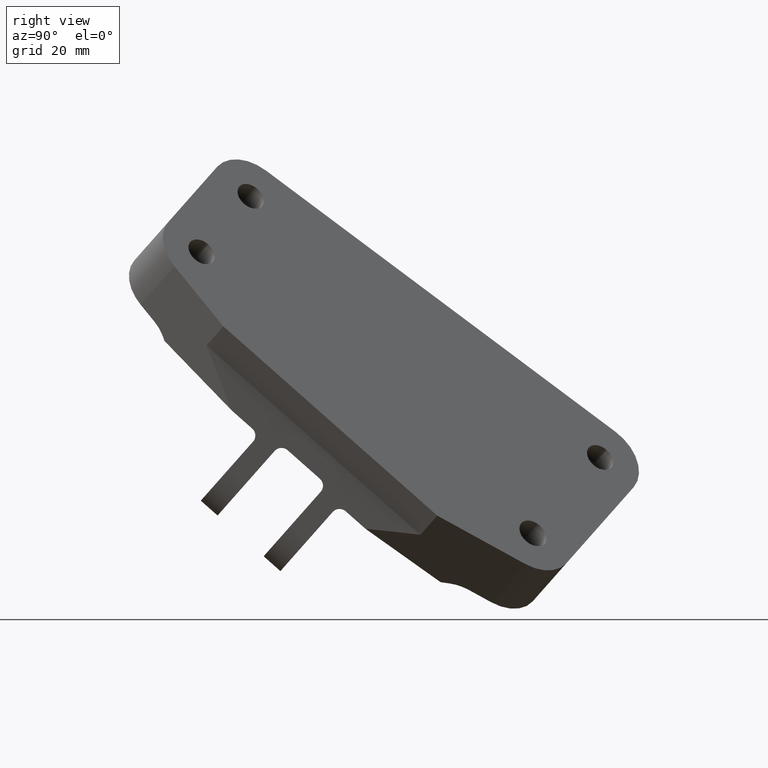
[diagram: clean part render]
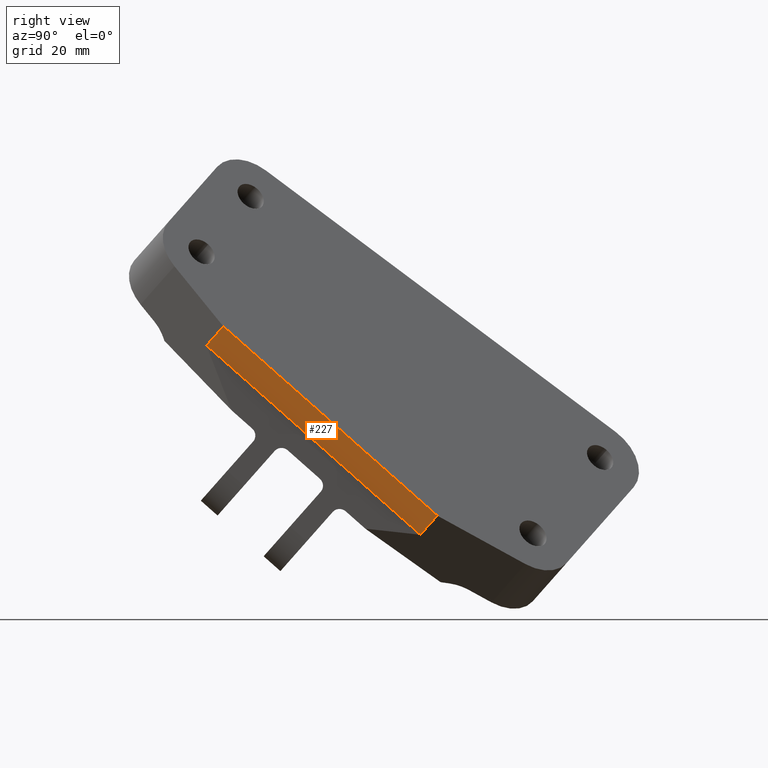
[diagram: same view with one face highlighted and labeled with its STEP entity id]
A machine part, right view. The second image highlights one B-rep face of the part: STEP entity #227.
In plain terms, the highlighted planar face has unit normal (0.749, -0.439, -0.4963).
Its self-contained STEP definition (entity closure, byte-faithful):
#185=FACE_OUTER_BOUND('',#380,.T.);
#227=ADVANCED_FACE('',(#185),#263,.T.);
#263=PLANE('',#1202);
#380=EDGE_LOOP('',(#789,#790,#791,#792));
#417=LINE('',#1556,#491);
#453=LINE('',#1702,#527);
#459=LINE('',#1715,#533);
#486=LINE('',#1794,#560);
#491=VECTOR('',#1247,1.);
#527=VECTOR('',#1353,1.);
#533=VECTOR('',#1365,1.);
#560=VECTOR('',#1440,1.);
#789=ORIENTED_EDGE('',*,*,#945,.F.);
#790=ORIENTED_EDGE('',*,*,#1015,.T.);
#791=ORIENTED_EDGE('',*,*,#1054,.T.);
#792=ORIENTED_EDGE('',*,*,#1009,.F.);
#845=VERTEX_POINT('',#1555);
#846=VERTEX_POINT('',#1557);
#889=VERTEX_POINT('',#1703);
#892=VERTEX_POINT('',#1714);
#945=EDGE_CURVE('',#845,#846,#417,.T.);
#1009=EDGE_CURVE('',#846,#889,#453,.T.);
#1015=EDGE_CURVE('',#845,#892,#459,.T.);
#1054=EDGE_CURVE('',#892,#889,#486,.T.);
#1202=AXIS2_PLACEMENT_3D('',#1818,#1479,#1480);
#1247=DIRECTION('',(-1.,-2.28230537492878E-015,-2.28230537492878E-015));
#1353=DIRECTION('',(0.,0.662599371078666,0.748974013865739));
#1365=DIRECTION('',(0.,0.662599371078666,0.748974013865739));
#1440=DIRECTION('',(-1.,-1.26723775384915E-015,-5.25521943056643E-015));
#1479=DIRECTION('',(-1.31512079454678E-015,-0.748974013865739,0.662599371078666));
#1480=DIRECTION('',(0.,-0.662599371078666,-0.748974013865739));
#1555=CARTESIAN_POINT('',(-0.879921596478063,-1.74959076598307,1.54782104548812));
#1556=CARTESIAN_POINT('',(-0.879921596478063,-1.74959076598304,1.54782104548809));
#1557=CARTESIAN_POINT('',(-4.71022129070651,-1.74959076598305,1.54782104548808));
#1702=CARTESIAN_POINT('',(-4.71022129070651,-4.76044230816455,-1.8555168735178));
#1703=CARTESIAN_POINT('',(-4.71022129070651,-1.44744545277122,1.8893531958109));
#1714=CARTESIAN_POINT('',(-0.879921596478063,-1.44744545277121,1.88935319581091));
#1715=CARTESIAN_POINT('',(-0.879921596478063,-4.76044230816454,-1.85551687351779));
#1794=CARTESIAN_POINT('',(-2.202,-1.44744545277121,1.88935319581091));
#1818=CARTESIAN_POINT('',(-4.71022129070651,-4.76044230816454,-1.8555168735178));